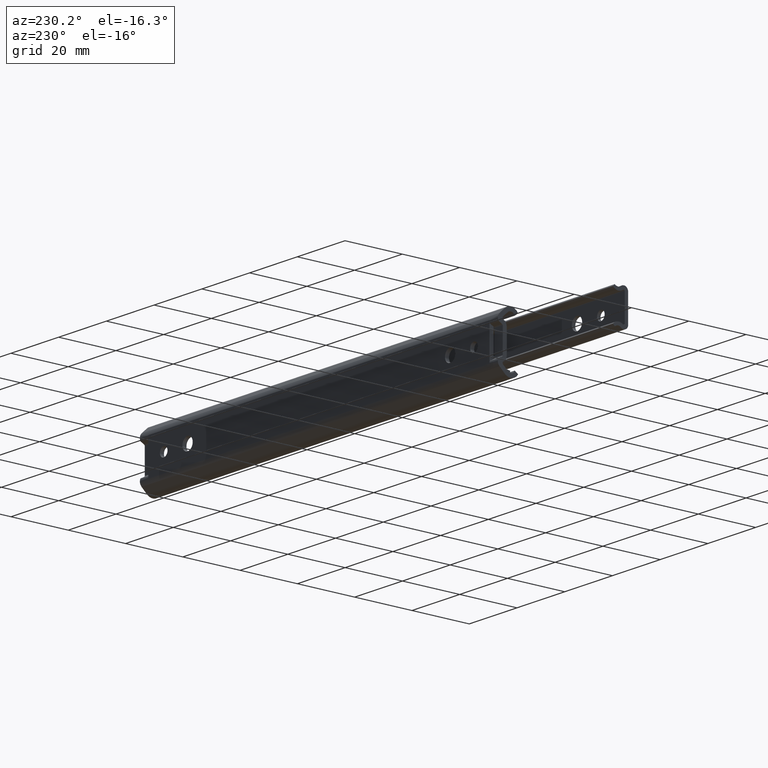
[diagram: clean part render]
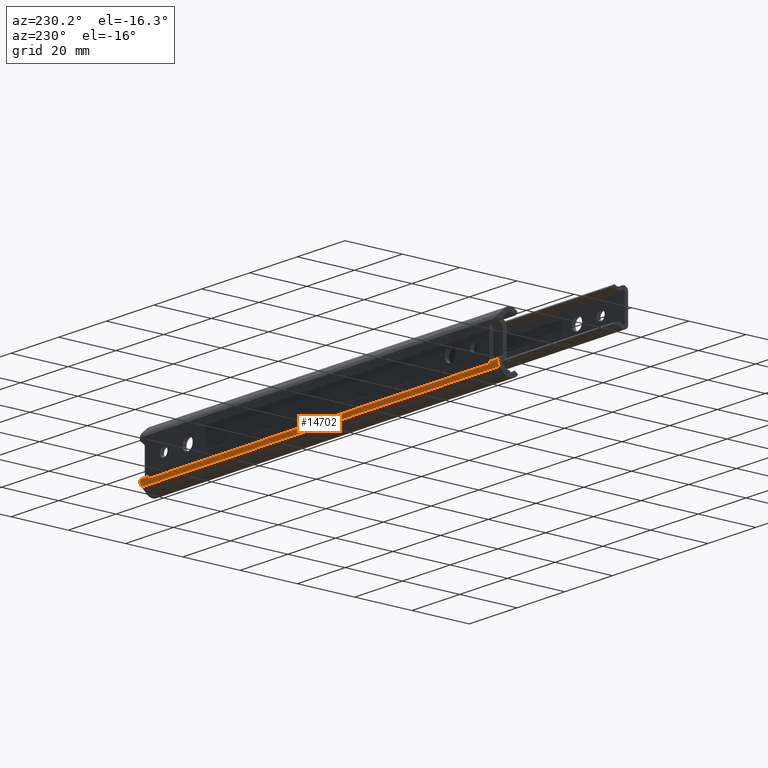
[diagram: same view with one face highlighted and labeled with its STEP entity id]
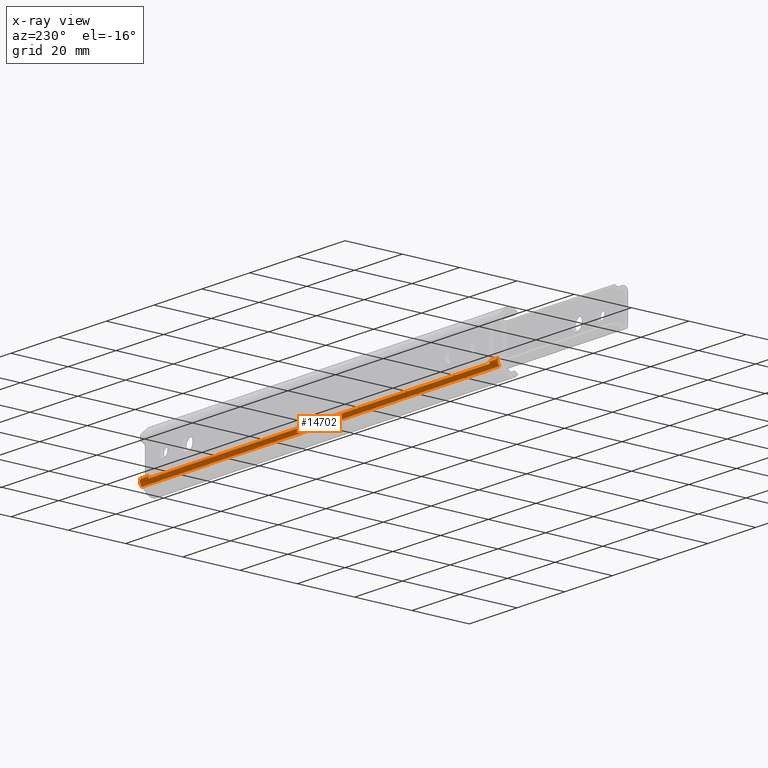
[diagram: x-ray of the same camera — body ghosted, the highlighted face saturated]
A machine part, auxiliary view. The second image highlights one B-rep face of the part: STEP entity #14702.
The next image is the same camera in x-ray: the body ghosted, the highlighted face saturated — about 0% of this face is hidden behind the body in this view.
In plain terms, the highlighted face is a freeform B-spline surface patch.
Its self-contained STEP definition (entity closure, byte-faithful):
#12831=CARTESIAN_POINT('',(150.0,-0.607033335278490,-7.474194876987769));
#12832=VERTEX_POINT('',#12831);
#12838=CARTESIAN_POINT('',(150.0,-0.145791159527804,-5.352090377215760));
#12839=VERTEX_POINT('',#12838);
#12840=CARTESIAN_POINT('',(150.0,-0.607033335278490,-7.474194876987769));
#12841=CARTESIAN_POINT('',(150.000000000000030,0.362522377311526,-6.573751029787657));
#12842=CARTESIAN_POINT('',(150.0,-0.145791159527804,-5.352090377215760));
#12850=(BOUNDED_CURVE()B_SPLINE_CURVE(2,(#12840,#12841,#12842),.UNSPECIFIED.,.F.,.U.)CURVE()GEOMETRIC_REPRESENTATION_ITEM()QUASI_UNIFORM_CURVE()RATIONAL_B_SPLINE_CURVE((1.0,0.820610904097897,1.0))REPRESENTATION_ITEM(''));
#12851=EDGE_CURVE('',#12832,#12839,#12850,.T.);
#13221=CARTESIAN_POINT('',(146.500000000000000,-0.145791159527804,-5.352090377215760));
#13222=VERTEX_POINT('',#13221);
#13223=CARTESIAN_POINT('',(146.500000000000000,-0.145791159527804,-5.352090377215760));
#13224=CARTESIAN_POINT('',(150.0,-0.145791159527804,-5.352090377215760));
#13225=QUASI_UNIFORM_CURVE('',1,(#13223,#13224),.UNSPECIFIED.,.F.,.U.);
#13226=EDGE_CURVE('',#13222,#12839,#13225,.T.);
#13641=CARTESIAN_POINT('',(0.0,-0.145791159527804,-5.352090377215760));
#13642=VERTEX_POINT('',#13641);
#13656=CARTESIAN_POINT('',(0.0,-0.607033335278490,-7.474194876987769));
#13657=VERTEX_POINT('',#13656);
#13658=CARTESIAN_POINT('',(0.0,-0.607033335278490,-7.474194876987769));
#13659=CARTESIAN_POINT('',(0.0,0.362522377311526,-6.573751029787657));
#13660=CARTESIAN_POINT('',(0.0,-0.145791159527804,-5.352090377215760));
#13668=(BOUNDED_CURVE()B_SPLINE_CURVE(2,(#13658,#13659,#13660),.UNSPECIFIED.,.F.,.U.)CURVE()GEOMETRIC_REPRESENTATION_ITEM()QUASI_UNIFORM_CURVE()RATIONAL_B_SPLINE_CURVE((1.0,0.820610904097897,1.0))REPRESENTATION_ITEM(''));
#13669=EDGE_CURVE('',#13657,#13642,#13668,.T.);
#14090=CARTESIAN_POINT('',(3.499999999999950,-0.145791159527804,-5.352090377215760));
#14091=VERTEX_POINT('',#14090);
#14105=CARTESIAN_POINT('',(3.499999999999950,-0.145791159527804,-5.352090377215760));
#14106=CARTESIAN_POINT('',(0.0,-0.145791159527804,-5.352090377215760));
#14107=QUASI_UNIFORM_CURVE('',1,(#14105,#14106),.UNSPECIFIED.,.F.,.U.);
#14108=EDGE_CURVE('',#14091,#13642,#14107,.T.);
#14389=CARTESIAN_POINT('',(3.499999999999950,7.958044E-014,-6.081989000000000));
#14390=VERTEX_POINT('',#14389);
#14398=CARTESIAN_POINT('',(3.499999999999950,7.958044E-014,-6.081989000000000));
#14399=CARTESIAN_POINT('',(3.499999999999950,-1.318390E-013,-5.702479404800715));
#14400=CARTESIAN_POINT('',(3.499999999999950,-0.145791159527804,-5.352090377215760));
#14408=(BOUNDED_CURVE()B_SPLINE_CURVE(2,(#14398,#14399,#14400),.UNSPECIFIED.,.F.,.U.)CURVE()GEOMETRIC_REPRESENTATION_ITEM()QUASI_UNIFORM_CURVE()RATIONAL_B_SPLINE_CURVE((1.0,0.980629320117348,1.0))REPRESENTATION_ITEM(''));
#14409=EDGE_CURVE('',#14390,#14091,#14408,.T.);
#14649=CARTESIAN_POINT('',(150.0,-0.607033335278490,-7.474194876987769));
#14650=CARTESIAN_POINT('',(0.0,-0.607033335278490,-7.474194876987769));
#14651=QUASI_UNIFORM_CURVE('',1,(#14649,#14650),.UNSPECIFIED.,.F.,.U.);
#14652=EDGE_CURVE('',#12832,#13657,#14651,.T.);
#14660=CARTESIAN_POINT('',(153.750000000000000,-0.666048708172573,-7.526760334640059));
#14661=CARTESIAN_POINT('',(-3.843750000000000,-0.666048708172573,-7.526760334640059));
#14662=CARTESIAN_POINT('',(153.750000000000030,0.442563328355126,-6.579916206569435));
#14663=CARTESIAN_POINT('',(-3.843750000000000,0.442563328355126,-6.579916206569435));
#14664=CARTESIAN_POINT('',(153.750000000000000,-0.185087959735185,-5.264017916064240));
#14665=CARTESIAN_POINT('',(-3.843750000000000,-0.185087959735185,-5.264017916064240));
#14673=(BOUNDED_SURFACE()B_SPLINE_SURFACE(1,2,((#14660,#14662,#14664),(#14661,#14663,#14665)),.UNSPECIFIED.,.F.,.F.,.U.)B_SPLINE_SURFACE_WITH_KNOTS((2,2),(3,3),(0.0,157.593750000000000),(0.0,2.579852367361656),.UNSPECIFIED.)GEOMETRIC_REPRESENTATION_ITEM()RATIONAL_B_SPLINE_SURFACE(((1.0,0.793353340291235,1.0),(1.0,0.793353340291235,1.0)))REPRESENTATION_ITEM('')SURFACE());
#14674=CARTESIAN_POINT('',(146.500000000000000,8.521829E-014,-6.081989000000000));
#14675=VERTEX_POINT('',#14674);
#14676=CARTESIAN_POINT('',(146.500000000000000,8.521829E-014,-6.081989000000000));
#14677=CARTESIAN_POINT('',(3.499999999999950,7.958044E-014,-6.081989000000000));
#14678=QUASI_UNIFORM_CURVE('',1,(#14676,#14677),.UNSPECIFIED.,.F.,.U.);
#14679=EDGE_CURVE('',#14675,#14390,#14678,.T.);
#14680=ORIENTED_EDGE('',*,*,#14679,.F.);
#14681=CARTESIAN_POINT('',(146.500000000000000,-8.998878E-014,-6.081989000000000));
#14682=CARTESIAN_POINT('',(146.500000000000000,-1.318390E-013,-5.702479404800715));
#14683=CARTESIAN_POINT('',(146.500000000000000,-0.145791159527804,-5.352090377215760));
#14691=(BOUNDED_CURVE()B_SPLINE_CURVE(2,(#14681,#14682,#14683),.UNSPECIFIED.,.F.,.U.)CURVE()GEOMETRIC_REPRESENTATION_ITEM()QUASI_UNIFORM_CURVE()RATIONAL_B_SPLINE_CURVE((1.0,0.980629320117348,1.0))REPRESENTATION_ITEM(''));
#14692=EDGE_CURVE('',#14675,#13222,#14691,.T.);
#14693=ORIENTED_EDGE('',*,*,#14692,.T.);
#14694=ORIENTED_EDGE('',*,*,#13226,.T.);
#14695=ORIENTED_EDGE('',*,*,#12851,.F.);
#14696=ORIENTED_EDGE('',*,*,#14652,.T.);
#14697=ORIENTED_EDGE('',*,*,#13669,.T.);
#14698=ORIENTED_EDGE('',*,*,#14108,.F.);
#14699=ORIENTED_EDGE('',*,*,#14409,.F.);
#14700=EDGE_LOOP('',(#14680,#14693,#14694,#14695,#14696,#14697,#14698,#14699));
#14701=FACE_OUTER_BOUND('',#14700,.T.);
#14702=ADVANCED_FACE('',(#14701),#14673,.T.);